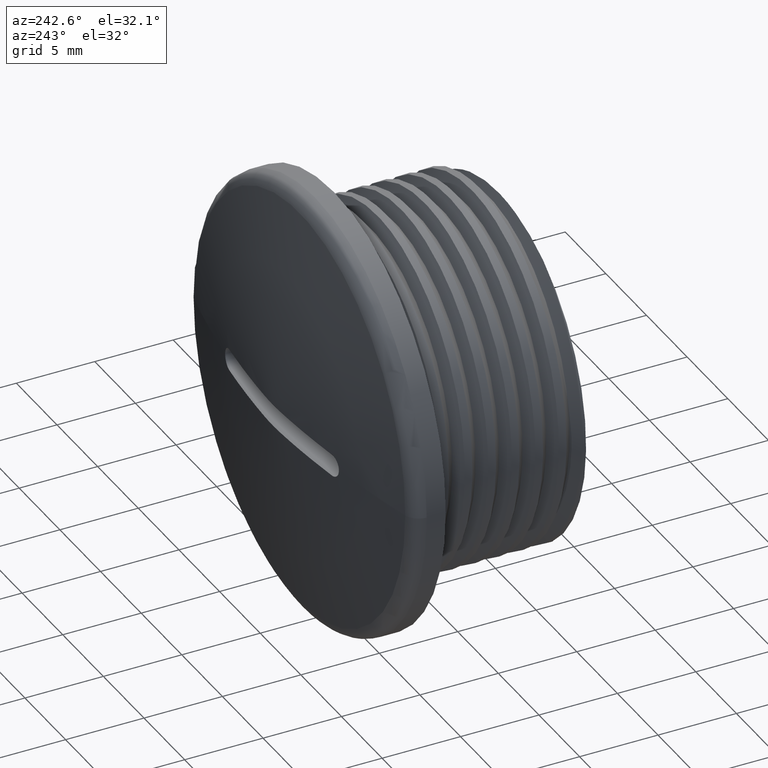
[diagram: clean part render]
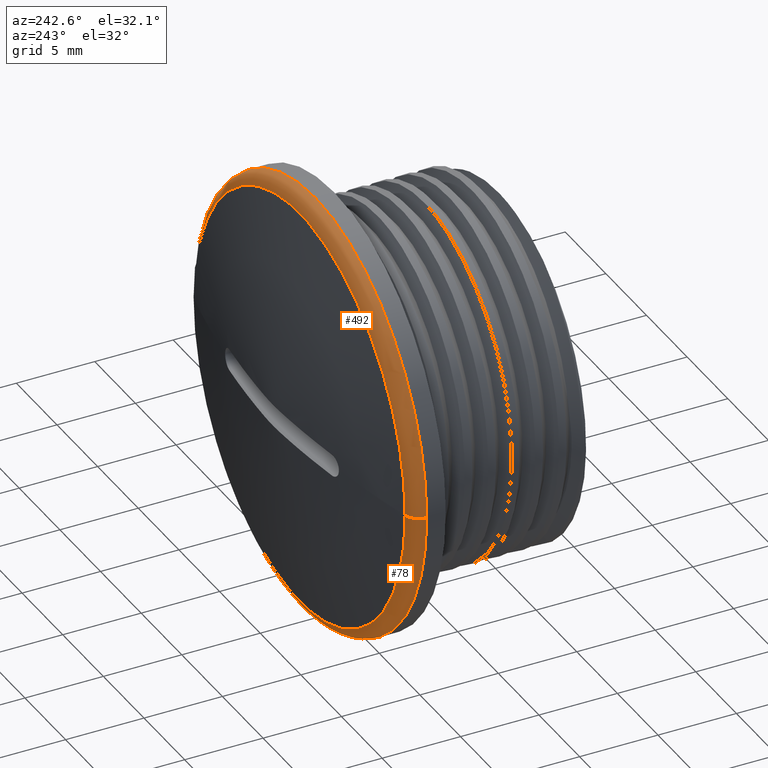
[diagram: same view with one multi-face feature highlighted, each face labeled with its STEP entity id]
A machine part, auxiliary view. The highlighted faces form ONE feature: a constant-radius fillet chain: 2 tangent blend faces with common blend radius 1 mm. The faces share edges in the B-rep.
Their STEP definitions:
[1] entity #492 (Torus):
#22 = VERTEX_POINT ( 'NONE', #2037 ) ;
#38 = EDGE_LOOP ( 'NONE', ( #129, #126, #133, #89, #106 ) ) ;
#49 = VERTEX_POINT ( 'NONE', #2088 ) ;
#89 = ORIENTED_EDGE ( 'NONE', *, *, #539, .F. ) ;
#106 = ORIENTED_EDGE ( 'NONE', *, *, #522, .F. ) ;
#126 = ORIENTED_EDGE ( 'NONE', *, *, #517, .T. ) ;
#129 = ORIENTED_EDGE ( 'NONE', *, *, #504, .T. ) ;
#133 = ORIENTED_EDGE ( 'NONE', *, *, #523, .F. ) ;
#343 = CARTESIAN_POINT ( 'NONE',  ( 1.683889348827610700E-015, 11.51158170808555200, 13.75000000000000000 ) ) ;
#346 = CARTESIAN_POINT ( 'NONE',  ( 12.97773186409552400, 12.48530558993069100, 6.007738757631049300E-031 ) ) ;
#459 = VERTEX_POINT ( 'NONE', #1565 ) ;
#492 = ADVANCED_FACE ( 'NONE', ( #663 ), #1655, .T. ) ;
#504 = EDGE_CURVE ( 'NONE', #2014, #49, #1683, .T. ) ;
#517 = EDGE_CURVE ( 'NONE', #49, #459, #1684, .T. ) ;
#522 = EDGE_CURVE ( 'NONE', #2014, #22, #1695, .T. ) ;
#523 = EDGE_CURVE ( 'NONE', #1837, #459, #1708, .T. ) ;
#539 = EDGE_CURVE ( 'NONE', #22, #1837, #1692, .T. ) ;
#663 = FACE_OUTER_BOUND ( 'NONE', #38, .T. ) ;
#664 = DIRECTION ( 'NONE',  ( -6.308085367188392500E-017, -1.000000000000000000, 1.591677639989452300E-032 ) ) ;
#665 = DIRECTION ( 'NONE',  ( 1.000000000000000000, -6.308085367188392500E-017, -1.004043843009841400E-048 ) ) ;
#672 = CARTESIAN_POINT ( 'NONE',  ( -8.419446744138048300E-016, 11.51158170808555600, 0.0000000000000000000 ) ) ;
#763 = CARTESIAN_POINT ( 'NONE',  ( -7.946568893778604600E-016, 12.48530558993069100, 0.0000000000000000000 ) ) ;
#778 = DIRECTION ( 'NONE',  ( 6.683461694782469300E-017, -1.000000000000000000, -1.786746409024981700E-032 ) ) ;
#780 = DIRECTION ( 'NONE',  ( 1.000000000000000000, 1.336692338956493400E-016, 0.0000000000000000000 ) ) ;
#862 = CARTESIAN_POINT ( 'NONE',  ( 0.0000000000000000000, 11.51158170808555200, 0.0000000000000000000 ) ) ;
#869 = DIRECTION ( 'NONE',  ( -1.004043843009841800E-048, -1.591677639989452300E-032, -1.000000000000000000 ) ) ;
#873 = CARTESIAN_POINT ( 'NONE',  ( -12.75000000000000200, 11.51158170808555600, 1.561424668912875500E-015 ) ) ;
#874 = DIRECTION ( 'NONE',  ( 1.000000000000000000, 0.0000000000000000000, -1.224646799147353900E-016 ) ) ;
#883 = DIRECTION ( 'NONE',  ( -0.0000000000000000000, -1.000000000000000000, -0.0000000000000000000 ) ) ;
#887 = DIRECTION ( 'NONE',  ( 0.0000000000000000000, 0.0000000000000000000, -1.000000000000000000 ) ) ;
#890 = CARTESIAN_POINT ( 'NONE',  ( 12.75000000000000200, 11.51158170808555600, 0.0000000000000000000 ) ) ;
#893 = DIRECTION ( 'NONE',  ( 0.0000000000000000000, 1.000000000000000000, -1.591677639989451800E-032 ) ) ;
#895 = DIRECTION ( 'NONE',  ( 1.224646799147353200E-016, 8.191599846219002000E-033, 1.000000000000000000 ) ) ;
#951 = CARTESIAN_POINT ( 'NONE',  ( 0.0000000000000000000, 11.51158170808555200, 0.0000000000000000000 ) ) ;
#952 = DIRECTION ( 'NONE',  ( -0.0000000000000000000, -1.000000000000000000, -0.0000000000000000000 ) ) ;
#957 = DIRECTION ( 'NONE',  ( 0.0000000000000000000, 0.0000000000000000000, -1.000000000000000000 ) ) ;
#1565 = CARTESIAN_POINT ( 'NONE',  ( -13.74999999999999800, 11.51158170808555200, 1.683889348827610500E-015 ) ) ;
#1655 = TOROIDAL_SURFACE ( 'NONE', #1665, 12.75000000000000200, 0.9999999999999954500 ) ;
#1665 = AXIS2_PLACEMENT_3D ( 'NONE', #672, #664, #665 ) ;
#1677 = AXIS2_PLACEMENT_3D ( 'NONE', #763, #778, #780 ) ;
#1683 = CIRCLE ( 'NONE', #1677, 12.97773186409553300 ) ;
#1684 = CIRCLE ( 'NONE', #1688, 0.9999999999999956700 ) ;
#1688 = AXIS2_PLACEMENT_3D ( 'NONE', #873, #895, #874 ) ;
#1692 = CIRCLE ( 'NONE', #1694, 13.75000000000000000 ) ;
#1694 = AXIS2_PLACEMENT_3D ( 'NONE', #951, #952, #957 ) ;
#1695 = CIRCLE ( 'NONE', #1715, 0.9999999999999956700 ) ;
#1703 = AXIS2_PLACEMENT_3D ( 'NONE', #862, #883, #887 ) ;
#1708 = CIRCLE ( 'NONE', #1703, 13.75000000000000000 ) ;
#1715 = AXIS2_PLACEMENT_3D ( 'NONE', #890, #869, #893 ) ;
#1837 = VERTEX_POINT ( 'NONE', #343 ) ;
#2014 = VERTEX_POINT ( 'NONE', #346 ) ;
#2037 = CARTESIAN_POINT ( 'NONE',  ( 13.74999999999999800, 11.51158170808555200, 6.297061770204818300E-047 ) ) ;
#2088 = CARTESIAN_POINT ( 'NONE',  ( -12.97773186409552400, 12.48530558993069000, 1.589313778755720100E-015 ) ) ;
[2] entity #78 (Torus):
#22 = VERTEX_POINT ( 'NONE', #2037 ) ;
#47 = EDGE_LOOP ( 'NONE', ( #146, #151, #2026, #2055, #2022 ) ) ;
#49 = VERTEX_POINT ( 'NONE', #2088 ) ;
#78 = ADVANCED_FACE ( 'NONE', ( #1938 ), #1620, .T. ) ;
#146 = ORIENTED_EDGE ( 'NONE', *, *, #517, .F. ) ;
#151 = ORIENTED_EDGE ( 'NONE', *, *, #460, .T. ) ;
#346 = CARTESIAN_POINT ( 'NONE',  ( 12.97773186409552400, 12.48530558993069100, 6.007738757631049300E-031 ) ) ;
#458 = VERTEX_POINT ( 'NONE', #1568 ) ;
#459 = VERTEX_POINT ( 'NONE', #1565 ) ;
#460 = EDGE_CURVE ( 'NONE', #49, #2014, #1626, .T. ) ;
#517 = EDGE_CURVE ( 'NONE', #49, #459, #1684, .T. ) ;
#519 = EDGE_CURVE ( 'NONE', #459, #458, #1686, .T. ) ;
#522 = EDGE_CURVE ( 'NONE', #2014, #22, #1695, .T. ) ;
#550 = EDGE_CURVE ( 'NONE', #458, #22, #1745, .T. ) ;
#858 = DIRECTION ( 'NONE',  ( -0.0000000000000000000, -1.000000000000000000, -0.0000000000000000000 ) ) ;
#869 = DIRECTION ( 'NONE',  ( -1.004043843009841800E-048, -1.591677639989452300E-032, -1.000000000000000000 ) ) ;
#873 = CARTESIAN_POINT ( 'NONE',  ( -12.75000000000000200, 11.51158170808555600, 1.561424668912875500E-015 ) ) ;
#874 = DIRECTION ( 'NONE',  ( 1.000000000000000000, 0.0000000000000000000, -1.224646799147353900E-016 ) ) ;
#876 = CARTESIAN_POINT ( 'NONE',  ( 0.0000000000000000000, 11.51158170808555200, 0.0000000000000000000 ) ) ;
#890 = CARTESIAN_POINT ( 'NONE',  ( 12.75000000000000200, 11.51158170808555600, 0.0000000000000000000 ) ) ;
#892 = DIRECTION ( 'NONE',  ( 0.0000000000000000000, 0.0000000000000000000, -1.000000000000000000 ) ) ;
#893 = DIRECTION ( 'NONE',  ( 0.0000000000000000000, 1.000000000000000000, -1.591677639989451800E-032 ) ) ;
#895 = DIRECTION ( 'NONE',  ( 1.224646799147353200E-016, 8.191599846219002000E-033, 1.000000000000000000 ) ) ;
#1008 = DIRECTION ( 'NONE',  ( -0.0000000000000000000, -1.000000000000000000, -0.0000000000000000000 ) ) ;
#1009 = CARTESIAN_POINT ( 'NONE',  ( 0.0000000000000000000, 11.51158170808555200, 0.0000000000000000000 ) ) ;
#1014 = DIRECTION ( 'NONE',  ( 0.0000000000000000000, 0.0000000000000000000, -1.000000000000000000 ) ) ;
#1536 = DIRECTION ( 'NONE',  ( 6.683461694782469300E-017, -1.000000000000000000, -1.786746409024981700E-032 ) ) ;
#1547 = DIRECTION ( 'NONE',  ( 1.000000000000000000, 1.336692338956493400E-016, 0.0000000000000000000 ) ) ;
#1565 = CARTESIAN_POINT ( 'NONE',  ( -13.74999999999999800, 11.51158170808555200, 1.683889348827610500E-015 ) ) ;
#1566 = CARTESIAN_POINT ( 'NONE',  ( -7.946568893778604600E-016, 12.48530558993069100, 0.0000000000000000000 ) ) ;
#1568 = CARTESIAN_POINT ( 'NONE',  ( 0.0000000000000000000, 11.51158170808555200, -13.75000000000000000 ) ) ;
#1620 = TOROIDAL_SURFACE ( 'NONE', #1644, 12.75000000000000200, 0.9999999999999954500 ) ;
#1626 = CIRCLE ( 'NONE', #1635, 12.97773186409553300 ) ;
#1635 = AXIS2_PLACEMENT_3D ( 'NONE', #1566, #1536, #1547 ) ;
#1644 = AXIS2_PLACEMENT_3D ( 'NONE', #1935, #1986, #1994 ) ;
#1684 = CIRCLE ( 'NONE', #1688, 0.9999999999999956700 ) ;
#1686 = CIRCLE ( 'NONE', #1687, 13.75000000000000000 ) ;
#1687 = AXIS2_PLACEMENT_3D ( 'NONE', #876, #858, #892 ) ;
#1688 = AXIS2_PLACEMENT_3D ( 'NONE', #873, #895, #874 ) ;
#1695 = CIRCLE ( 'NONE', #1715, 0.9999999999999956700 ) ;
#1715 = AXIS2_PLACEMENT_3D ( 'NONE', #890, #869, #893 ) ;
#1743 = AXIS2_PLACEMENT_3D ( 'NONE', #1009, #1008, #1014 ) ;
#1745 = CIRCLE ( 'NONE', #1743, 13.75000000000000000 ) ;
#1935 = CARTESIAN_POINT ( 'NONE',  ( -8.419446744138048300E-016, 11.51158170808555600, 0.0000000000000000000 ) ) ;
#1938 = FACE_OUTER_BOUND ( 'NONE', #47, .T. ) ;
#1986 = DIRECTION ( 'NONE',  ( -6.308085367188392500E-017, -1.000000000000000000, 1.591677639989452300E-032 ) ) ;
#1994 = DIRECTION ( 'NONE',  ( 1.000000000000000000, -6.308085367188392500E-017, -1.004043843009841400E-048 ) ) ;
#2014 = VERTEX_POINT ( 'NONE', #346 ) ;
#2022 = ORIENTED_EDGE ( 'NONE', *, *, #519, .F. ) ;
#2026 = ORIENTED_EDGE ( 'NONE', *, *, #522, .T. ) ;
#2037 = CARTESIAN_POINT ( 'NONE',  ( 13.74999999999999800, 11.51158170808555200, 6.297061770204818300E-047 ) ) ;
#2055 = ORIENTED_EDGE ( 'NONE', *, *, #550, .F. ) ;
#2088 = CARTESIAN_POINT ( 'NONE',  ( -12.97773186409552400, 12.48530558993069000, 1.589313778755720100E-015 ) ) ;